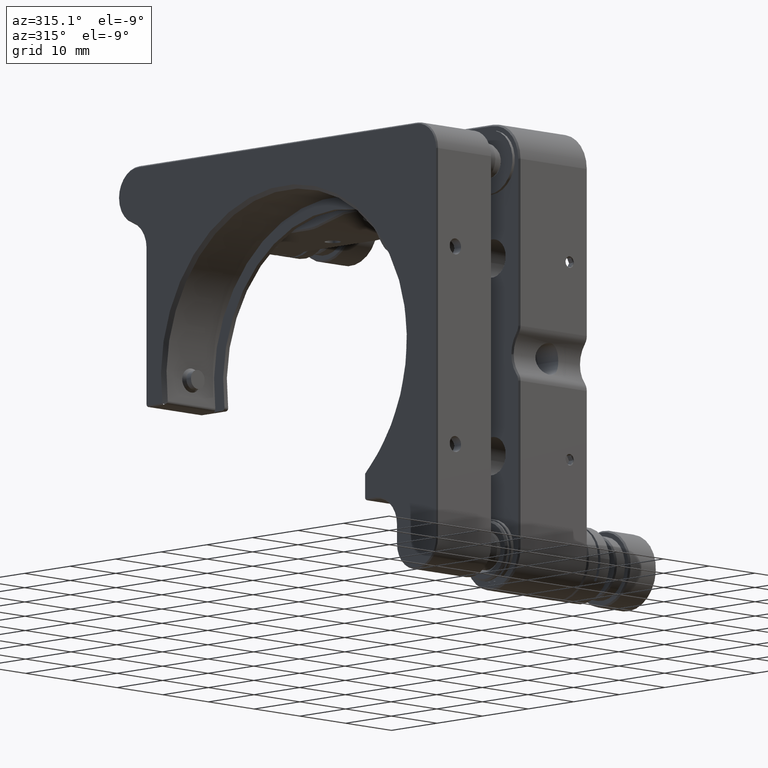
[diagram: clean part render]
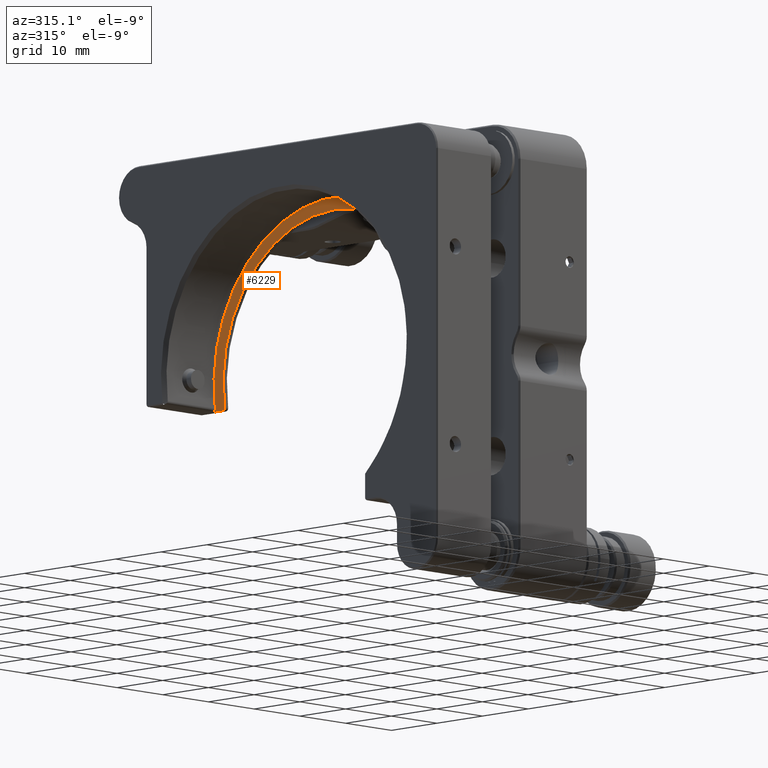
[diagram: same view with one face highlighted and labeled with its STEP entity id]
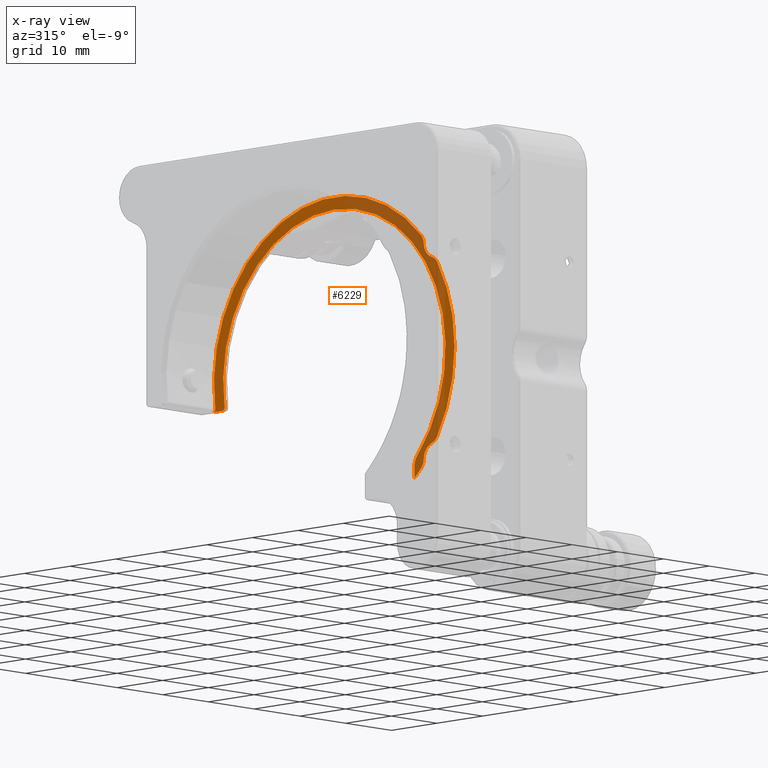
[diagram: x-ray of the same camera — body ghosted, the highlighted face saturated]
A machine part, auxiliary view. The second image highlights one B-rep face of the part: STEP entity #6229.
The next image is the same camera in x-ray: the body ghosted, the highlighted face saturated — about 40% of this face is hidden behind the body in this view.
In plain terms, the highlighted planar face has unit normal (-1, 0, 0).
Its self-contained STEP definition (entity closure, byte-faithful):
#33 = DIRECTION ( 'NONE',  ( 0.000000000000000000, 0.000000000000000000, -1.000000000000000000 ) ) ;
#51 = AXIS2_PLACEMENT_3D ( 'NONE', #13772, #13700, #904 ) ;
#149 = ORIENTED_EDGE ( 'NONE', *, *, #269, .F. ) ;
#243 = VERTEX_POINT ( 'NONE', #1285 ) ;
#269 = EDGE_CURVE ( 'NONE', #5586, #6678, #14670, .T. ) ;
#365 = CARTESIAN_POINT ( 'NONE',  ( -4.975619322914199394, -20.31707137695319787, -34.28615277554731477 ) ) ;
#368 = ORIENTED_EDGE ( 'NONE', *, *, #14444, .F. ) ;
#499 = ORIENTED_EDGE ( 'NONE', *, *, #1344, .F. ) ;
#500 = CARTESIAN_POINT ( 'NONE',  ( -4.975619322914199394, -2.717071376953200001, -16.59999999999998366 ) ) ;
#503 = EDGE_CURVE ( 'NONE', #11878, #7277, #9375, .T. ) ;
#514 = AXIS2_PLACEMENT_3D ( 'NONE', #5652, #3194, #33 ) ;
#731 = CARTESIAN_POINT ( 'NONE',  ( -4.975619322914199394, -20.48064015018739781, -36.12986493651654740 ) ) ;
#733 = CARTESIAN_POINT ( 'NONE',  ( -4.975619322914199394, 21.87561046134984366, -20.49999999999996803 ) ) ;
#836 = PLANE ( 'NONE',  #5875 ) ;
#896 = CARTESIAN_POINT ( 'NONE',  ( -4.975619322914199394, 21.87561046134984366, -20.99999999999997158 ) ) ;
#904 = DIRECTION ( 'NONE',  ( 0.000000000000000000, 0.000000000000000000, -1.000000000000000000 ) ) ;
#932 = CARTESIAN_POINT ( 'NONE',  ( -4.975619322914199394, -24.85162957107865012, 0.3844438693433455123 ) ) ;
#999 = DIRECTION ( 'NONE',  ( 0.000000000000000000, 3.942553354492743531E-16, -1.000000000000000000 ) ) ;
#1117 = DIRECTION ( 'NONE',  ( 0.000000000000000000, 3.910237343390343125E-16, -1.000000000000000000 ) ) ;
#1157 = EDGE_CURVE ( 'NONE', #12961, #11679, #10337, .T. ) ;
#1278 = ORIENTED_EDGE ( 'NONE', *, *, #4621, .T. ) ;
#1285 = CARTESIAN_POINT ( 'NONE',  ( -4.975619322914199394, 23.89871341327983600, -20.99999999999997158 ) ) ;
#1344 = EDGE_CURVE ( 'NONE', #1915, #3163, #11089, .T. ) ;
#1426 = EDGE_CURVE ( 'NONE', #6678, #12961, #2711, .T. ) ;
#1652 = DIRECTION ( 'NONE',  ( 1.000000000000000000, -0.000000000000000000, -0.000000000000000000 ) ) ;
#1915 = VERTEX_POINT ( 'NONE', #6451 ) ;
#1971 = DIRECTION ( 'NONE',  ( -1.000000000000000000, 0.000000000000000000, 0.000000000000000000 ) ) ;
#2120 = ORIENTED_EDGE ( 'NONE', *, *, #5012, .F. ) ;
#2159 = CARTESIAN_POINT ( 'NONE',  ( -4.975619322914199394, -24.13905889188260900, -31.18814609420141792 ) ) ;
#2201 = AXIS2_PLACEMENT_3D ( 'NONE', #3040, #4341, #12515 ) ;
#2214 = DIRECTION ( 'NONE',  ( 0.000000000000000000, 0.000000000000000000, -1.000000000000000000 ) ) ;
#2293 = CARTESIAN_POINT ( 'NONE',  ( -4.975619322914199394, -2.717071376953200001, -16.59999999999998366 ) ) ;
#2372 = CARTESIAN_POINT ( 'NONE',  ( -4.975619322914199394, -20.35329858283551729, 0.2618946130764701619 ) ) ;
#2396 = ORIENTED_EDGE ( 'NONE', *, *, #1157, .F. ) ;
#2522 = CARTESIAN_POINT ( 'NONE',  ( -4.975619322914199394, -20.31707137695320498, -16.59999999999999787 ) ) ;
#2711 = CIRCLE ( 'NONE', #514, 2.000000000000001776 ) ;
#2781 = VERTEX_POINT ( 'NONE', #12321 ) ;
#3014 = CARTESIAN_POINT ( 'NONE',  ( -4.975619322914199394, 21.38178150877347505, -20.42168674698791619 ) ) ;
#3016 = VERTEX_POINT ( 'NONE', #896 ) ;
#3040 = CARTESIAN_POINT ( 'NONE',  ( -4.975619322914199394, -23.56900234852579956, -3.928892125912110345 ) ) ;
#3049 = DIRECTION ( 'NONE',  ( 1.000000000000000000, -0.000000000000000000, -0.000000000000000000 ) ) ;
#3149 = DIRECTION ( 'NONE',  ( 1.000000000000000000, -0.000000000000000000, -0.000000000000000000 ) ) ;
#3163 = VERTEX_POINT ( 'NONE', #11756 ) ;
#3194 = DIRECTION ( 'NONE',  ( 1.000000000000000000, -0.000000000000000000, -0.000000000000000000 ) ) ;
#3209 = FACE_OUTER_BOUND ( 'NONE', #10804, .T. ) ;
#3243 = DIRECTION ( 'NONE',  ( 0.000000000000000000, -2.775557561562893323E-15, -1.000000000000000000 ) ) ;
#3375 = DIRECTION ( 'NONE',  ( 0.000000000000000000, 0.000000000000000000, -1.000000000000000000 ) ) ;
#3388 = DIRECTION ( 'NONE',  ( -1.000000000000000000, 0.000000000000000000, 0.000000000000000000 ) ) ;
#3397 = VERTEX_POINT ( 'NONE', #5447 ) ;
#3815 = ORIENTED_EDGE ( 'NONE', *, *, #7698, .F. ) ;
#3822 = CARTESIAN_POINT ( 'NONE',  ( -4.975619322914199394, -21.79889097676027987, -34.84401712234500792 ) ) ;
#3862 = DIRECTION ( 'NONE',  ( 0.000000000000000000, -1.000000000000000000, -4.690533287496243953E-16 ) ) ;
#3989 = CIRCLE ( 'NONE', #4973, 26.39999999999999858 ) ;
#4035 = DIRECTION ( 'NONE',  ( -1.000000000000000000, 0.000000000000000000, 0.000000000000000000 ) ) ;
#4303 = CARTESIAN_POINT ( 'NONE',  ( -4.975619322914199394, -20.83222289210471345, -32.94629271679372806 ) ) ;
#4341 = DIRECTION ( 'NONE',  ( 1.000000000000000000, -0.000000000000000000, -0.000000000000000000 ) ) ;
#4357 = VECTOR ( 'NONE', #3862, 1000.000000000000000 ) ;
#4394 = AXIS2_PLACEMENT_3D ( 'NONE', #733, #3049, #7752 ) ;
#4621 = EDGE_CURVE ( 'NONE', #243, #3016, #7417, .T. ) ;
#4973 = AXIS2_PLACEMENT_3D ( 'NONE', #500, #1652, #5272 ) ;
#5012 = EDGE_CURVE ( 'NONE', #3163, #5055, #11562, .T. ) ;
#5055 = VERTEX_POINT ( 'NONE', #7666 ) ;
#5136 = CIRCLE ( 'NONE', #4394, 0.5000000000000004441 ) ;
#5138 = EDGE_CURVE ( 'NONE', #9885, #7277, #8912, .T. ) ;
#5272 = DIRECTION ( 'NONE',  ( 0.000000000000000000, 3.942553354492743531E-16, -1.000000000000000000 ) ) ;
#5447 = CARTESIAN_POINT ( 'NONE',  ( -4.975619322914199394, -25.27817701832681863, -30.30972327360326801 ) ) ;
#5586 = VERTEX_POINT ( 'NONE', #2159 ) ;
#5652 = CARTESIAN_POINT ( 'NONE',  ( -4.975619322914199394, -20.35329858283550308, -33.46189461307645274 ) ) ;
#5687 = CIRCLE ( 'NONE', #10364, 0.5000000000000004441 ) ;
#5875 = AXIS2_PLACEMENT_3D ( 'NONE', #2293, #1971, #7913 ) ;
#5891 = ORIENTED_EDGE ( 'NONE', *, *, #1426, .F. ) ;
#6020 = ORIENTED_EDGE ( 'NONE', *, *, #10093, .T. ) ;
#6212 = CARTESIAN_POINT ( 'NONE',  ( -4.975619322914199394, 23.40399622387030121, -20.42750929368026291 ) ) ;
#6229 = ADVANCED_FACE ( 'NONE', ( #3209 ), #836, .T. ) ;
#6233 = ORIENTED_EDGE ( 'NONE', *, *, #15198, .F. ) ;
#6451 = CARTESIAN_POINT ( 'NONE',  ( -4.975619322914199394, -22.35255679983246679, 0.3163609491950783448 ) ) ;
#6678 = VERTEX_POINT ( 'NONE', #13898 ) ;
#7147 = VERTEX_POINT ( 'NONE', #11866 ) ;
#7223 = DIRECTION ( 'NONE',  ( 0.000000000000000000, 3.965082230804130220E-16, -1.000000000000000000 ) ) ;
#7277 = VERTEX_POINT ( 'NONE', #4303 ) ;
#7417 = LINE ( 'NONE', #9888, #4357 ) ;
#7554 = CARTESIAN_POINT ( 'NONE',  ( -4.975619322914199394, -2.717071376953200001, -16.59999999999998366 ) ) ;
#7666 = CARTESIAN_POINT ( 'NONE',  ( -4.975619322914199394, -25.27817701832682928, -2.890276726396710849 ) ) ;
#7698 = EDGE_CURVE ( 'NONE', #9885, #3016, #5136, .T. ) ;
#7752 = DIRECTION ( 'NONE',  ( 0.000000000000000000, 0.000000000000000000, -1.000000000000000000 ) ) ;
#7913 = DIRECTION ( 'NONE',  ( 0.000000000000000000, 3.965082230804130220E-16, -1.000000000000000000 ) ) ;
#8020 = AXIS2_PLACEMENT_3D ( 'NONE', #10682, #12760, #11696 ) ;
#8365 = LINE ( 'NONE', #2522, #10866 ) ;
#8394 = CIRCLE ( 'NONE', #13323, 2.000000000000000000 ) ;
#8409 = ORIENTED_EDGE ( 'NONE', *, *, #5138, .T. ) ;
#8740 = DIRECTION ( 'NONE',  ( 0.000000000000000000, 3.469446951953611033E-14, -1.000000000000000000 ) ) ;
#8912 = CIRCLE ( 'NONE', #10634, 24.40000000000000568 ) ;
#9033 = DIRECTION ( 'NONE',  ( 1.000000000000000000, -0.000000000000000000, -0.000000000000000000 ) ) ;
#9375 = CIRCLE ( 'NONE', #13820, 2.000000000000001776 ) ;
#9388 = ORIENTED_EDGE ( 'NONE', *, *, #13149, .F. ) ;
#9634 = AXIS2_PLACEMENT_3D ( 'NONE', #13790, #3149, #999 ) ;
#9647 = CIRCLE ( 'NONE', #51, 2.000000000000001776 ) ;
#9856 = AXIS2_PLACEMENT_3D ( 'NONE', #7554, #9951, #12261 ) ;
#9885 = VERTEX_POINT ( 'NONE', #3014 ) ;
#9888 = CARTESIAN_POINT ( 'NONE',  ( -4.975619322914199394, -2.717071376953198225, -20.99999999999998224 ) ) ;
#9951 = DIRECTION ( 'NONE',  ( 1.000000000000000000, -0.000000000000000000, -0.000000000000000000 ) ) ;
#10041 = EDGE_CURVE ( 'NONE', #7147, #1915, #8394, .T. ) ;
#10093 = EDGE_CURVE ( 'NONE', #11878, #2781, #8365, .T. ) ;
#10209 = CARTESIAN_POINT ( 'NONE',  ( -4.975619322914199394, -2.717071376953200001, -16.59999999999998366 ) ) ;
#10249 = ORIENTED_EDGE ( 'NONE', *, *, #12346, .F. ) ;
#10332 = DIRECTION ( 'NONE',  ( 0.000000000000000000, 0.000000000000000000, -1.000000000000000000 ) ) ;
#10337 = CIRCLE ( 'NONE', #9856, 26.39999999999999858 ) ;
#10364 = AXIS2_PLACEMENT_3D ( 'NONE', #14604, #4035, #8740 ) ;
#10474 = ORIENTED_EDGE ( 'NONE', *, *, #503, .F. ) ;
#10634 = AXIS2_PLACEMENT_3D ( 'NONE', #10209, #13834, #1117 ) ;
#10682 = CARTESIAN_POINT ( 'NONE',  ( -4.975619322914199394, -24.85162957107863591, -33.58444386934333181 ) ) ;
#10692 = DIRECTION ( 'NONE',  ( 1.000000000000000000, -0.000000000000000000, -0.000000000000000000 ) ) ;
#10701 = ORIENTED_EDGE ( 'NONE', *, *, #10041, .F. ) ;
#10804 = EDGE_LOOP ( 'NONE', ( #6020, #10249, #2396, #5891, #149, #9388, #368, #2120, #499, #10701, #12349, #6233, #1278, #3815, #8409, #10474 ) ) ;
#10857 = CIRCLE ( 'NONE', #9634, 26.39999999999999858 ) ;
#10866 = VECTOR ( 'NONE', #7223, 1000.000000000000000 ) ;
#11089 = CIRCLE ( 'NONE', #13545, 2.499999999999998224 ) ;
#11562 = CIRCLE ( 'NONE', #2201, 2.000000000000000000 ) ;
#11679 = VERTEX_POINT ( 'NONE', #731 ) ;
#11696 = DIRECTION ( 'NONE',  ( 0.000000000000000000, -1.387778780781448437E-15, -1.000000000000000000 ) ) ;
#11756 = CARTESIAN_POINT ( 'NONE',  ( -4.975619322914199394, -24.13905889188261966, -2.011853905798576037 ) ) ;
#11836 = VERTEX_POINT ( 'NONE', #6212 ) ;
#11866 = CARTESIAN_POINT ( 'NONE',  ( -4.975619322914199394, -21.79889097676029408, 1.644017122345027504 ) ) ;
#11878 = VERTEX_POINT ( 'NONE', #365 ) ;
#12140 = CIRCLE ( 'NONE', #12389, 0.5000000000000004441 ) ;
#12261 = DIRECTION ( 'NONE',  ( 0.000000000000000000, 3.942553354492743531E-16, -1.000000000000000000 ) ) ;
#12321 = CARTESIAN_POINT ( 'NONE',  ( -4.975619322914199394, -20.31707137695319787, -36.49974874213238962 ) ) ;
#12346 = EDGE_CURVE ( 'NONE', #11679, #2781, #5687, .T. ) ;
#12349 = ORIENTED_EDGE ( 'NONE', *, *, #12751, .F. ) ;
#12389 = AXIS2_PLACEMENT_3D ( 'NONE', #12631, #12774, #2214 ) ;
#12515 = DIRECTION ( 'NONE',  ( 0.000000000000000000, 0.000000000000000000, -1.000000000000000000 ) ) ;
#12631 = CARTESIAN_POINT ( 'NONE',  ( -4.975619322914199394, 23.89871341327983600, -20.49999999999996803 ) ) ;
#12751 = EDGE_CURVE ( 'NONE', #11836, #7147, #10857, .T. ) ;
#12760 = DIRECTION ( 'NONE',  ( -1.000000000000000000, 0.000000000000000000, 0.000000000000000000 ) ) ;
#12774 = DIRECTION ( 'NONE',  ( -1.000000000000000000, 0.000000000000000000, 0.000000000000000000 ) ) ;
#12799 = CARTESIAN_POINT ( 'NONE',  ( -4.975619322914199394, -22.31707137695319787, -34.28615277554731477 ) ) ;
#12961 = VERTEX_POINT ( 'NONE', #3822 ) ;
#13149 = EDGE_CURVE ( 'NONE', #3397, #5586, #9647, .T. ) ;
#13323 = AXIS2_PLACEMENT_3D ( 'NONE', #2372, #10692, #3375 ) ;
#13545 = AXIS2_PLACEMENT_3D ( 'NONE', #932, #3388, #3243 ) ;
#13700 = DIRECTION ( 'NONE',  ( 1.000000000000000000, -0.000000000000000000, -0.000000000000000000 ) ) ;
#13772 = CARTESIAN_POINT ( 'NONE',  ( -4.975619322914199394, -23.56900234852578890, -29.27110787408788184 ) ) ;
#13790 = CARTESIAN_POINT ( 'NONE',  ( -4.975619322914199394, -2.717071376953200001, -16.59999999999998366 ) ) ;
#13820 = AXIS2_PLACEMENT_3D ( 'NONE', #12799, #9033, #10332 ) ;
#13834 = DIRECTION ( 'NONE',  ( 1.000000000000000000, -0.000000000000000000, -0.000000000000000000 ) ) ;
#13898 = CARTESIAN_POINT ( 'NONE',  ( -4.975619322914199394, -22.35255679983245258, -33.51636094919506093 ) ) ;
#14444 = EDGE_CURVE ( 'NONE', #5055, #3397, #3989, .T. ) ;
#14604 = CARTESIAN_POINT ( 'NONE',  ( -4.975619322914199394, -20.81707137695319787, -36.49974874213238962 ) ) ;
#14670 = CIRCLE ( 'NONE', #8020, 2.499999999999995115 ) ;
#15198 = EDGE_CURVE ( 'NONE', #243, #11836, #12140, .T. ) ;